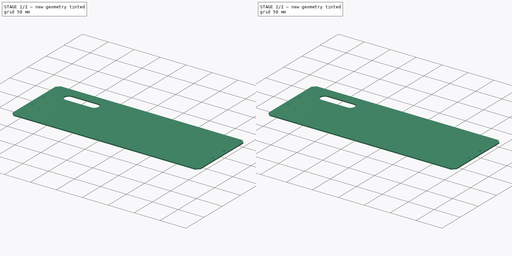
[diagram: build sequence overview — one tinted view per stage of 2, left to right]
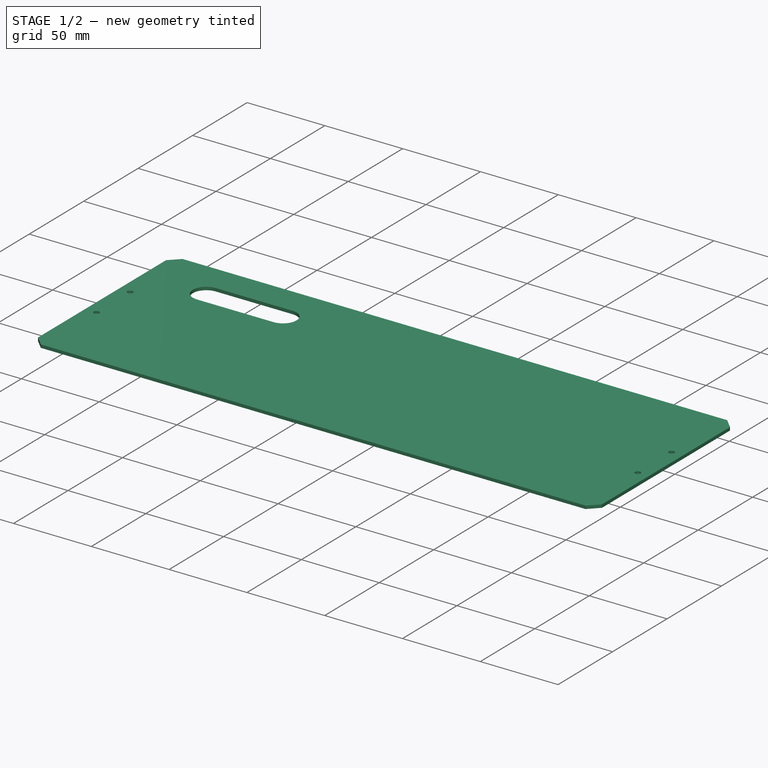
[diagram: stage 1 of 2 — iso view after this stage's code; geometry added in this stage tinted green]
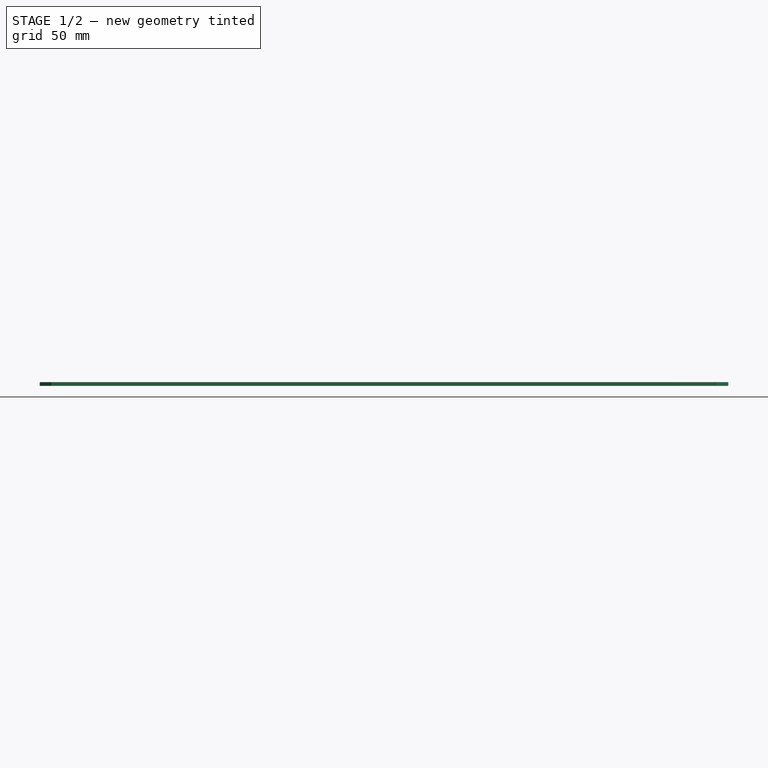
[diagram: stage 1 of 2 — front view after this stage's code; geometry added in this stage tinted green]
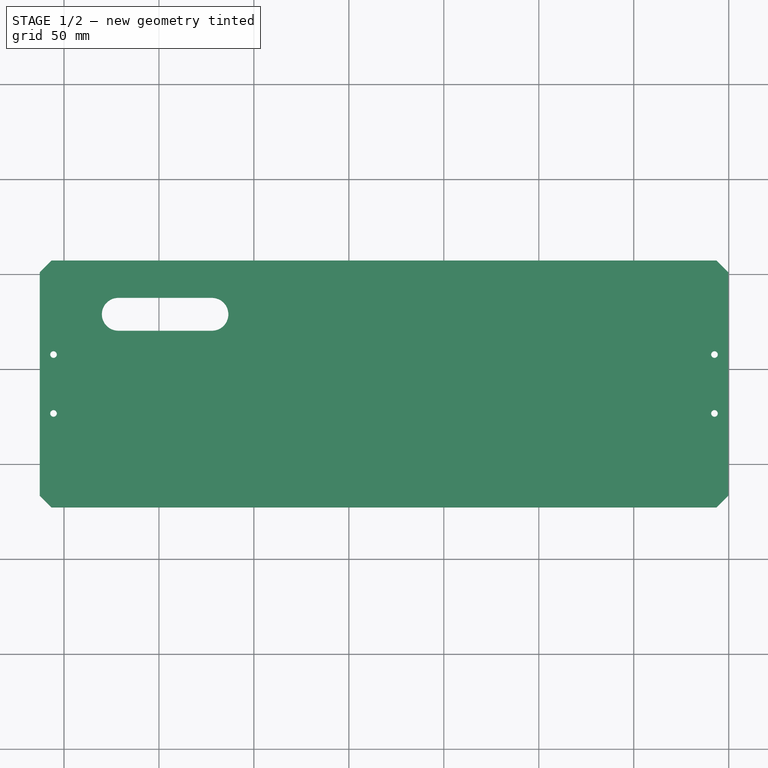
[diagram: stage 1 of 2 — top view after this stage's code; geometry added in this stage tinted green]
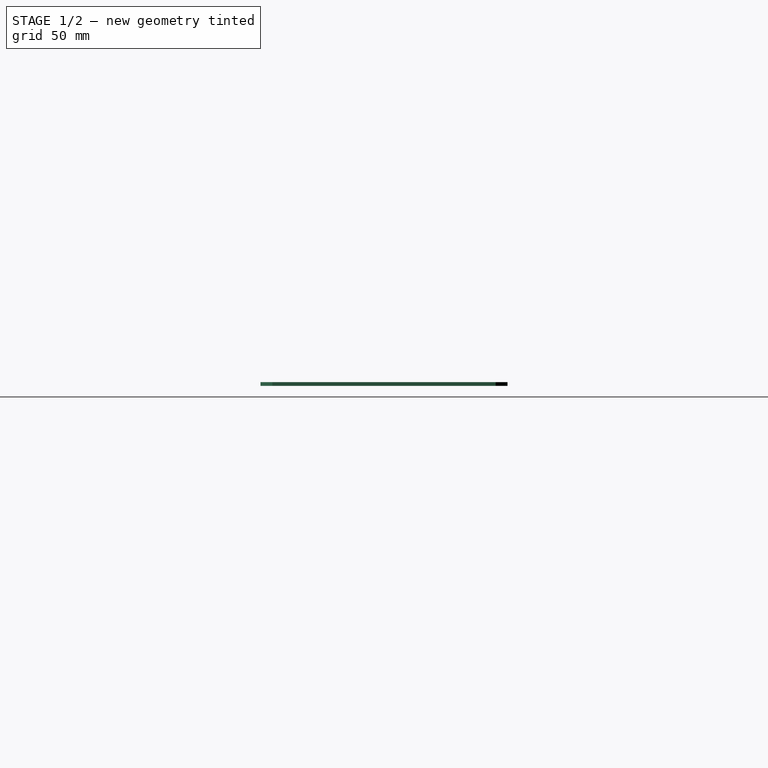
[diagram: stage 1 of 2 — right view after this stage's code; geometry added in this stage tinted green]
FCSTD DOCUMENT  (FreeCAD 0.20R29603 (Git))
Label: DCT_BOX_Panel
License: All rights reserved
LicenseURL: http://en.wikipedia.org/wiki/All_rights_reserved
objects: PartDesign::Pocket×2, PartDesign::Body×2, Part::Feature×1, PartDesign::FeatureBase×1, Sketcher::SketchObject×1
note: 9 computed .brp shape members not serialized (recipe doc carries the construction recipe); baked Part::Feature solids carry a one-line shape summary decoded from their .brp

FEATURE [Part::Feature] Part__Feature041  label="Front"
  Placement = pos=(-66.6357,-119.264,69.9309) rot=(0,0,1;0rad)
  shape: bbox 362.5 x 130 x 2 mm, 14 faces (baked)
FEATURE [PartDesign::FeatureBase] BaseFeature
  BaseFeature = -> Part__Feature041
FEATURE [Sketcher::SketchObject] Sketch
  FullyConstrained = false
  MapMode = 5
  Placement = pos=(0,0,0) rot=(1,0,0;3.14159rad)
  Support = -> [BaseFeature]
  sketch-geometry (19):
    g0: ArcOfCircle CenterX=-21.3909 CenterY=-78.951 CenterZ=0 NormalX=0 NormalY=0 NormalZ=1 AngleXU=0 Radius=8.66 StartAngle=1.5708 EndAngle=4.71239
    g1: ArcOfCircle CenterX=27.8971 CenterY=-78.951 CenterZ=0 NormalX=0 NormalY=0 NormalZ=1 AngleXU=0 Radius=8.66 StartAngle=4.71239 EndAngle=7.85398
    g2: LineSegment StartX=-21.3909 StartY=-87.611 StartZ=0 EndX=27.8971 EndY=-87.611 EndZ=0
    g3: LineSegment StartX=27.8971 StartY=-70.291 StartZ=0 EndX=-21.3909 EndY=-70.291 EndZ=0
    g4: LineSegment StartX=36.5571 StartY=-88.852 StartZ=0 EndX=36.5571 EndY=-69.05 EndZ=0
    g5: LineSegment StartX=-30.0509 StartY=-69.05 StartZ=0 EndX=-30.0509 EndY=-88.852 EndZ=0
    g6: LineSegment StartX=-34.7299 StartY=-69.05 StartZ=0 EndX=41.2361 EndY=-69.05 EndZ=0
    g7: LineSegment StartX=41.2361 StartY=-69.05 StartZ=0 EndX=41.2361 EndY=-88.852 EndZ=0
    g8: LineSegment StartX=41.2361 StartY=-88.852 StartZ=0 EndX=-34.7299 EndY=-88.852 EndZ=0
    g9: LineSegment StartX=-34.7299 StartY=-88.852 StartZ=0 EndX=-34.7299 EndY=-69.05 EndZ=0
    g10: LineSegment StartX=-30.0509 StartY=-78.951 StartZ=0 EndX=-34.7299 EndY=-78.951 EndZ=0
    g11: LineSegment StartX=36.5571 StartY=-78.951 StartZ=0 EndX=41.2361 EndY=-78.951 EndZ=0
    g12: LineSegment StartX=3.25315 StartY=-70.291 StartZ=0 EndX=3.25315 EndY=-69.05 EndZ=0
    g13: LineSegment StartX=3.25315 StartY=-88.852 StartZ=0 EndX=3.25315 EndY=-87.611 EndZ=0
    g14: LineSegment StartX=-30.0509 StartY=-78.951 StartZ=0 EndX=36.5571 EndY=-78.951 EndZ=0
    g15: LineSegment StartX=3.25315 StartY=-70.291 StartZ=0 EndX=3.25315 EndY=-87.611 EndZ=0
    g16: GeomPoint X=3.25315 Y=-78.951 Z=0
    g17: LineSegment StartX=36.5571 StartY=-69.05 StartZ=0 EndX=3.25315 EndY=-69.05 EndZ=0
    g18: LineSegment StartX=3.25315 StartY=-69.05 StartZ=0 EndX=-30.0509 EndY=-69.05 EndZ=0
  constraints (54):
    c: Tangent(g0,g2) = -1.5708
    c: Tangent(g2,g1) = -1.5708
    c: Tangent(g1,g3) = -1.5708
    c: Tangent(g3,g0) = -1.5708
    c: DistanceY(g1,g1) = 17.32
    c: Horizontal(g1,g0)
    c: Horizontal(g0,g1)
    c: Vertical(g4)
    c: Vertical(g5)
    c: Tangent(g5,g0)
    c: Tangent(g4,g1)
    c: Horizontal(g5,g4)
    c: DistanceX(g5,g4) = 66.608
    c: Coincident(g6,g7)
    c: Coincident(g7,g8)
    c: Coincident(g8,g9)
    c: Coincident(g9,g6)
    c: Horizontal(g6)
    c: Horizontal(g8)
    c: Vertical(g7)
    c: Vertical(g9)
    c: DistanceX(g6,g6) = 75.966
    c: DistanceY(g7,g7) = 19.802
    c: PointOnObject(g10,g5)
    c: PointOnObject(g10,g9)
    c: Horizontal(g10)
    c: PointOnObject(g11,g4)
    c: PointOnObject(g11,g7)
    c: Horizontal(g11)
    c: Equal(g11,g10)
    c: PointOnObject(g12,g3)
    c: PointOnObject(g12,g6)
    c: Vertical(g12)
    c: PointOnObject(g13,g8)
    c: PointOnObject(g13,g2)
    c: Vertical(g13)
    c: Equal(g13,g12)
    c: Equal(g5,g9)
    c: Horizontal(g5,g6)
    c: Horizontal(g0,g10)
    c: Horizontal(g1,g11)
    c: Coincident(g14,g10)
    c: Coincident(g14,g11)
    c: Coincident(g15,g12)
    c: Coincident(g15,g13)
    c: Vertical(g15)
    c: PointOnObject(g16,g14)
    c: Vertical(g16,g12)
    c: Horizontal(g4,g6)
    c: Coincident(g17,g4)
    c: Coincident(g17,g12)
    c: Coincident(g18,g12)
    c: Coincident(g18,g5)
    c: Equal(g17,g18)
FEATURE [PartDesign::Pocket] Pocket
  BaseFeature = -> BaseFeature
  Direction = (0,0,1)
  Length = 5
  Length2 = 5
  Profile = -> Sketch
  ReferenceAxis = -> Sketch [N_Axis]
  Type = 0
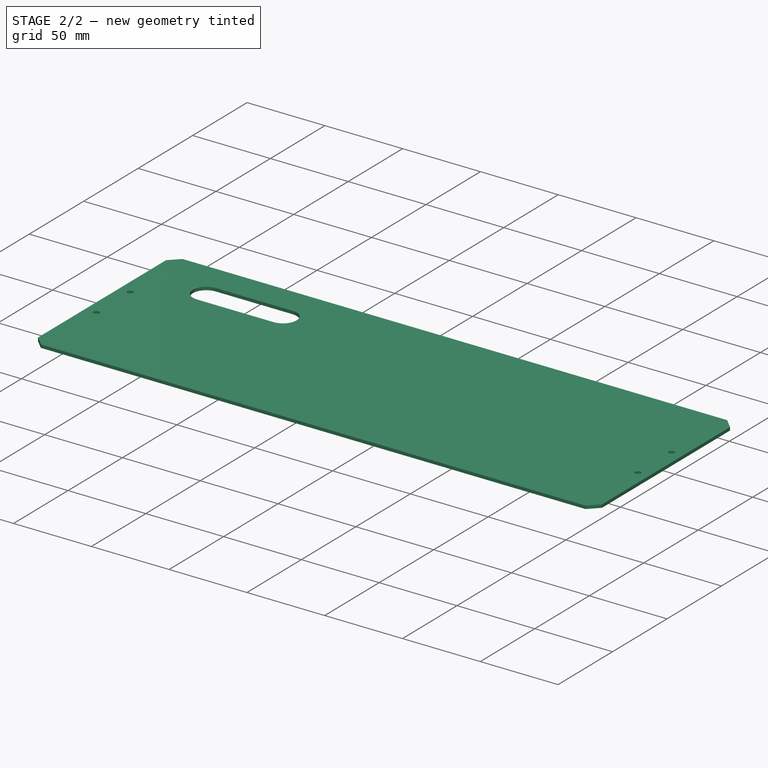
[diagram: stage 2 of 2 — iso view after this stage's code; geometry added in this stage tinted green]
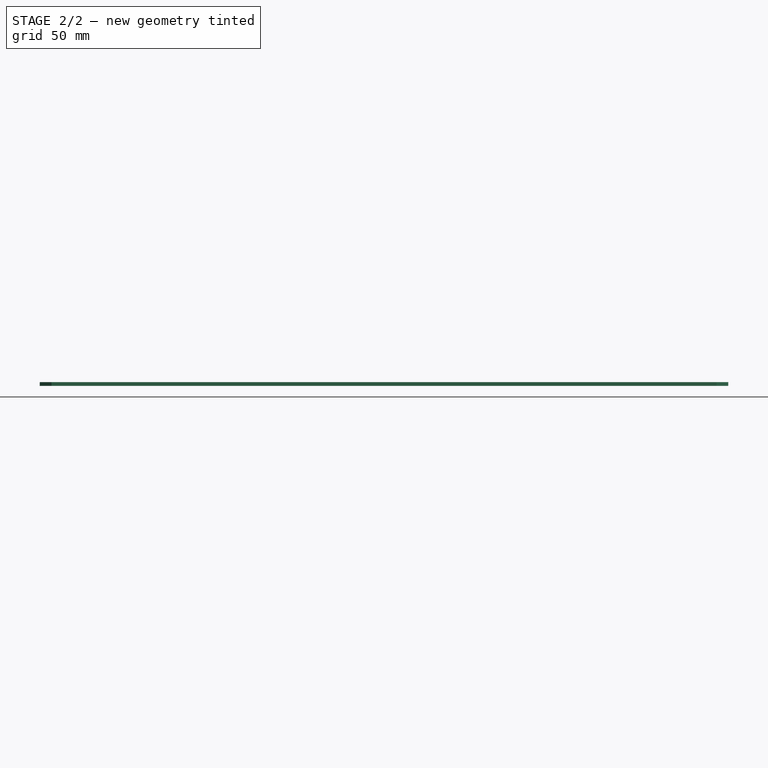
[diagram: stage 2 of 2 — front view after this stage's code; geometry added in this stage tinted green]
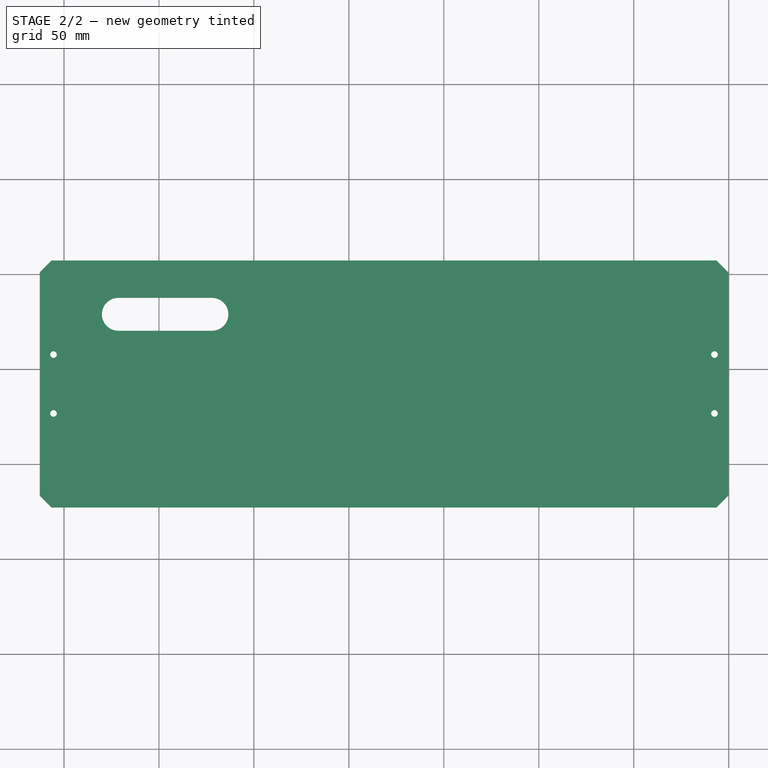
[diagram: stage 2 of 2 — top view after this stage's code; geometry added in this stage tinted green]
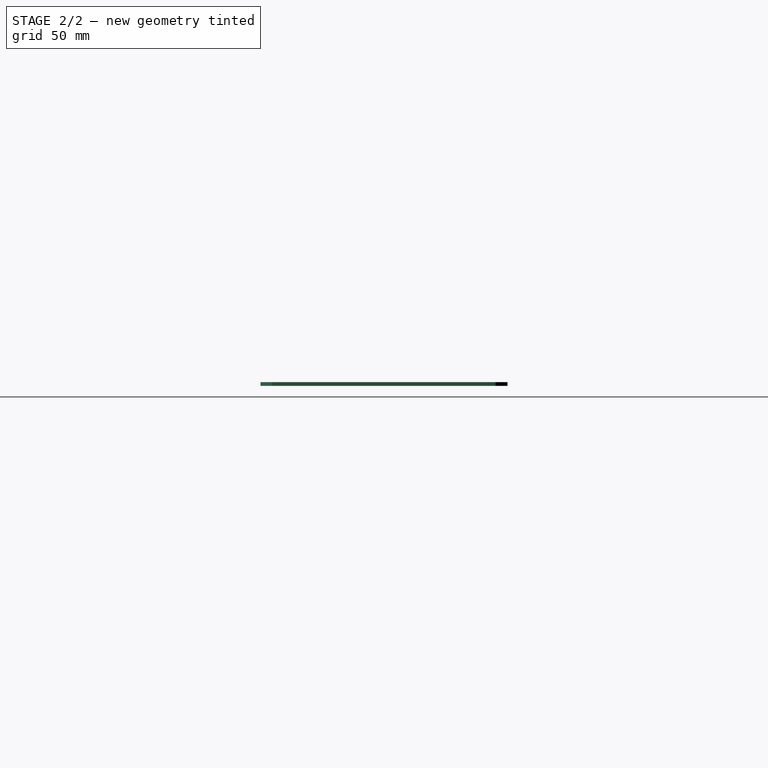
[diagram: stage 2 of 2 — right view after this stage's code; geometry added in this stage tinted green]
FEATURE [PartDesign::Body] Body
  Origin = -> Origin
FEATURE [PartDesign::Pocket] Pocket001
  BaseFeature = -> Pocket
  Direction = (0,0,1)
  Length = 5
  Length2 = 5
  Profile = -> Sketch
  ReferenceAxis = -> Sketch [N_Axis]
  Type = 1
FEATURE [PartDesign::Body] Body001  label="Front_Panel"
  BaseFeature = -> Part__Feature041
  Group = -> [BaseFeature,Sketch,Pocket,Pocket001]
  Origin = -> Origin001
  Tip = -> Pocket001
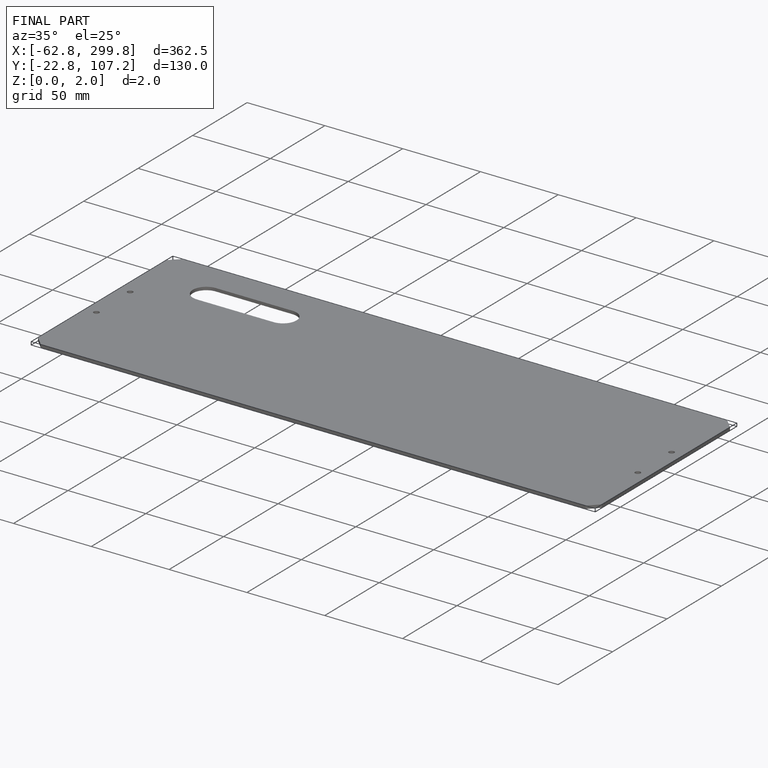
[diagram: finished part — iso view with bounding-box wireframe]
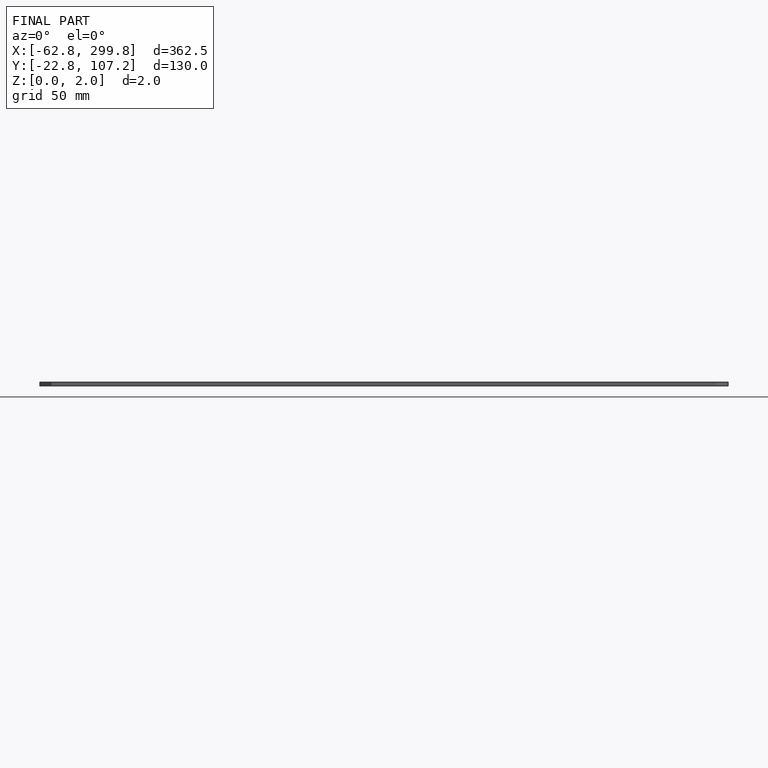
[diagram: finished part — front view with bounding-box wireframe]
